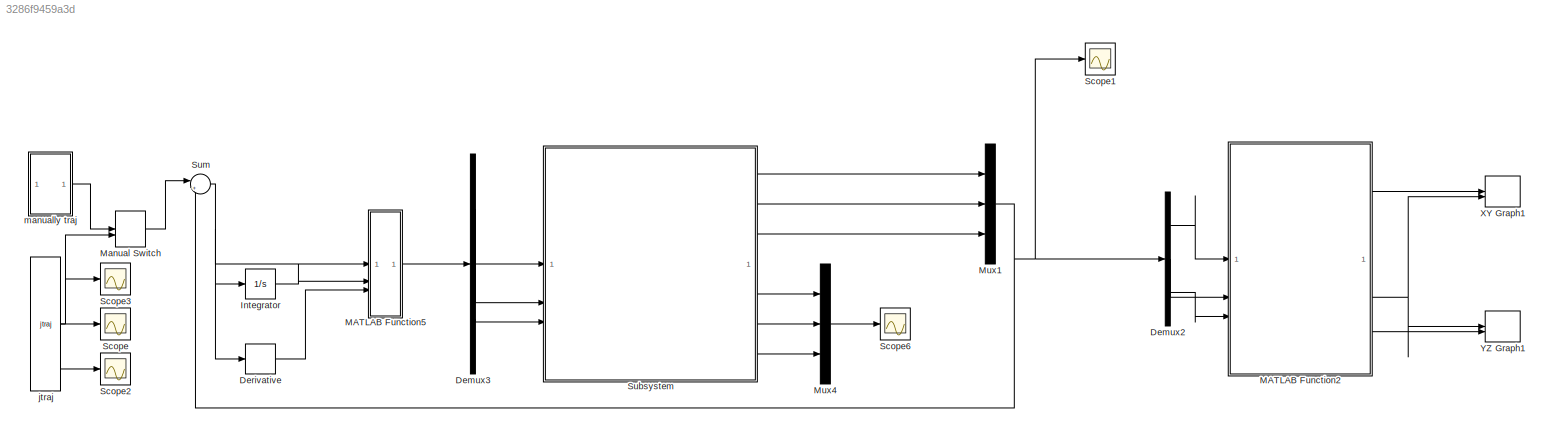
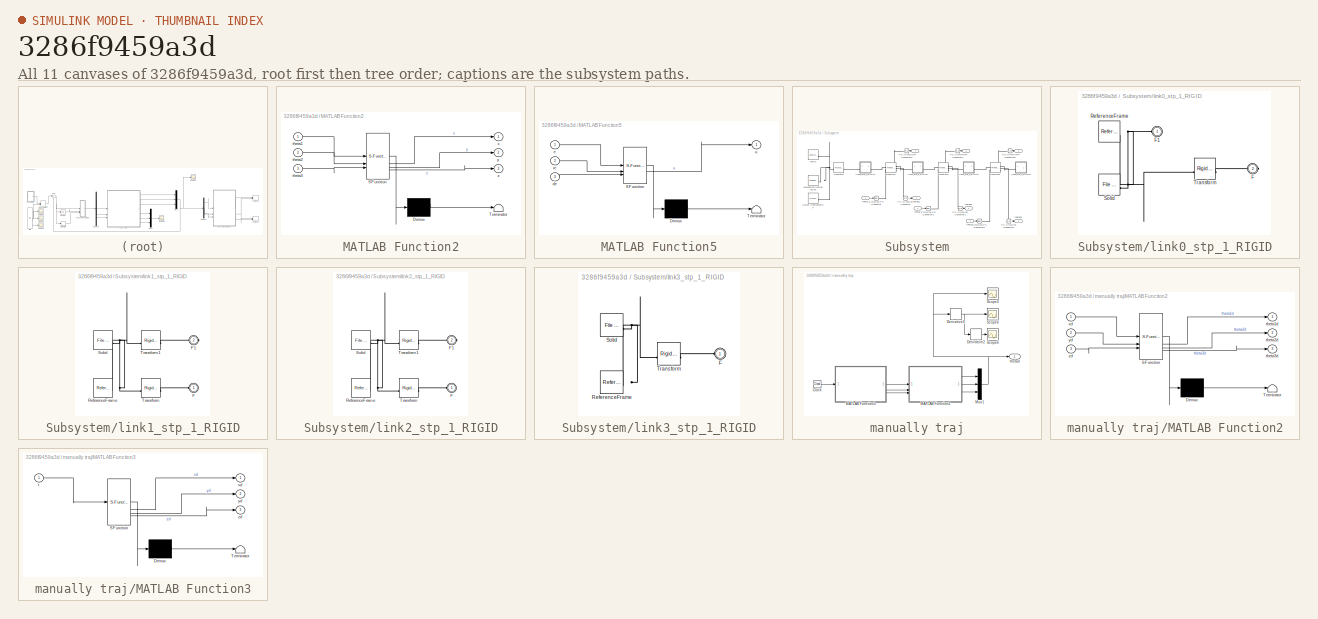
[diagram: thumbnail index - all 11 canvases of the model, root first then tree order]
MODEL slx_3286f9459a3d
KIND model
CONFIG AbsTol = auto
CONFIG EnableMultiTasking = off
CONFIG FixedStep = auto
CONFIG MaxStep = auto
CONFIG MinStep = auto
CONFIG RelTol = 1e-3
CONFIG SampleTimeConstraint = Unconstrained
CONFIG SolverName = VariableStepAuto
CONFIG StartTime = 0.0
CONFIG StopTime = 10.0
WORKSPACE source: external: MATLAB File  (data not in archive)
BLOCK [Demux] Demux2
  Outputs = 3
BLOCK [Demux] Demux3
  Outputs = 3
BLOCK [Derivative] Derivative
BLOCK [Integrator] Integrator
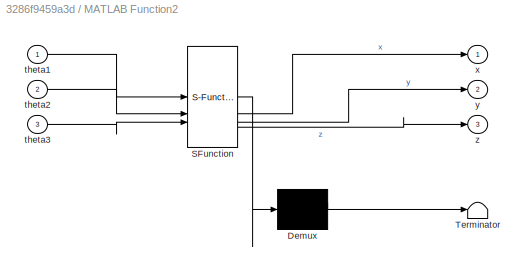
BLOCK [SubSystem] MATLAB Function2
  ErrorFcn = Stateflow.Translate.translate
  PermitHierarchicalResolution = ExplicitOnly
  SFBlockType = MATLAB Function
  TreatAsAtomicUnit = on
BLOCK [Demux] MATLAB Function2/ Demux 
  Outputs = 1
BLOCK [S-Function] MATLAB Function2/ SFunction 
  EnableBusSupport = on
  FunctionName = sf_sfun
  PortCounts = [3 4]
  SFcnIsStateOwnerBlock = off
  SFunctionDeploymentMode = off
  Tag = Stateflow S-Function 2
BLOCK [Terminator] MATLAB Function2/ Terminator 
BLOCK [Inport] MATLAB Function2/theta1
BLOCK [Inport] MATLAB Function2/theta2
  Port = 2
BLOCK [Inport] MATLAB Function2/theta3
  Port = 3
BLOCK [Outport] MATLAB Function2/x
BLOCK [Outport] MATLAB Function2/y
  Port = 2
BLOCK [Outport] MATLAB Function2/z
  Port = 3
BLOCK [SubSystem] MATLAB Function5
  ErrorFcn = Stateflow.Translate.translate
  PermitHierarchicalResolution = ExplicitOnly
  SFBlockType = MATLAB Function
  TreatAsAtomicUnit = on
BLOCK [Demux] MATLAB Function5/ Demux 
  Outputs = 1
BLOCK [S-Function] MATLAB Function5/ SFunction 
  EnableBusSupport = on
  FunctionName = sf_sfun
  PortCounts = [3 2]
  SFcnIsStateOwnerBlock = off
  SFunctionDeploymentMode = off
  Tag = Stateflow S-Function 5
BLOCK [Terminator] MATLAB Function5/ Terminator 
BLOCK [Inport] MATLAB Function5/de
  Port = 3
BLOCK [Inport] MATLAB Function5/e
BLOCK [Inport] MATLAB Function5/ie
  Port = 2
BLOCK [Outport] MATLAB Function5/u
BLOCK [ManualSwitch] Manual Switch
  CurrentSetting = 0
BLOCK [Mux] Mux1
  DisplayOption = bar
  Inputs = 3
BLOCK [Mux] Mux4
  DisplayOption = bar
  Inputs = 3
BLOCK [Scope] Scope
  Floating = off
  NumInputPorts = 1
  ScopeSpecificationString = Simulink.scopes.TimeScopeBlockCfg('CurrentConfiguration', extmgr.ConfigurationSet(extmgr.Configuration('Core','General UI',true),extmgr.Configuration('Core','Source UI',true),extmgr.Configuration('Sources','WiredSimulink',true,'DataLoggingVariableName','ScopeData1'),extmgr.Configuration('Visuals','Time Domain',true,'SerializedDisplays',{struct('MinYLimReal','-0.1256','MaxYLimReal','0.09629','YLabe...<+1421ch>
BLOCK [Scope] Scope1
  Floating = off
  NumInputPorts = 1
  ScopeSpecificationString = Simulink.scopes.TimeScopeBlockCfg('CurrentConfiguration', extmgr.ConfigurationSet(extmgr.Configuration('Core','General UI',true),extmgr.Configuration('Core','Source UI',true),extmgr.Configuration('Sources','WiredSimulink',true,'DataLoggingVariableName','ScopeData3'),extmgr.Configuration('Visuals','Time Domain',true,'SerializedDisplays',{struct('MinYLimReal','-1.87156','MaxYLimReal','2.00533','YLab...<+1457ch>
BLOCK [Scope] Scope2
  Floating = off
  NumInputPorts = 1
  ScopeSpecificationString = Simulink.scopes.TimeScopeBlockCfg('CurrentConfiguration', extmgr.ConfigurationSet(extmgr.Configuration('Core','General UI',true),extmgr.Configuration('Core','Source UI',true),extmgr.Configuration('Sources','WiredSimulink',true,'DataLoggingVariableName','ScopeData2'),extmgr.Configuration('Visuals','Time Domain',true,'SerializedDisplays',{struct('MinYLimReal','-0.18784','MaxYLimReal','0.14401','YLab...<+1425ch>
BLOCK [Scope] Scope3
  Floating = off
  NumInputPorts = 1
  ScopeSpecificationString = Simulink.scopes.TimeScopeBlockCfg('CurrentConfiguration', extmgr.ConfigurationSet(extmgr.Configuration('Core','General UI',true),extmgr.Configuration('Core','Source UI',true),extmgr.Configuration('Sources','WiredSimulink',true,'DataLoggingVariableName','ScopeData1'),extmgr.Configuration('Visuals','Time Domain',true,'SerializedDisplays',{struct('MinYLimReal','-1.98021','MaxYLimReal','2.11393','YLab...<+1426ch>
BLOCK [Scope] Scope6
  Floating = off
  NumInputPorts = 1
  ScopeSpecificationString = Simulink.scopes.TimeScopeBlockCfg('CurrentConfiguration', extmgr.ConfigurationSet(extmgr.Configuration('Core','General UI',true),extmgr.Configuration('Core','Source UI',true),extmgr.Configuration('Sources','WiredSimulink',true,'DataLoggingVariableName','ScopeData6'),extmgr.Configuration('Visuals','Time Domain',true,'SerializedDisplays',{struct('MinYLimReal','-29.19052','MaxYLimReal','33.42789','YL...<+1508ch>
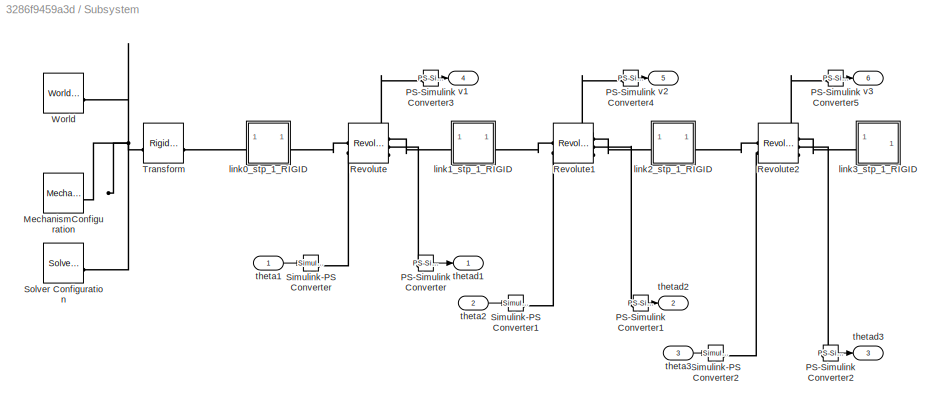
BLOCK [SubSystem] Subsystem
BLOCK [Reference] Subsystem/MechanismConfiguration  REF=sm_lib/Utilities/Mechanism
Configuration
  SourceBlock = sm_lib/Utilities/Mechanism\nConfiguration
  SourceType = Mechanism\nConfiguration
BLOCK [Reference] Subsystem/PS-Simulink Converter  REF=nesl_utility/PS-Simulink
Converter
  SourceBlock = nesl_utility/PS-Simulink\nConverter
  SourceType = PS-Simulink\nConverter
BLOCK [Reference] Subsystem/PS-Simulink Converter1  REF=nesl_utility/PS-Simulink
Converter
  SourceBlock = nesl_utility/PS-Simulink\nConverter
  SourceType = PS-Simulink\nConverter
BLOCK [Reference] Subsystem/PS-Simulink Converter2  REF=nesl_utility/PS-Simulink
Converter
  SourceBlock = nesl_utility/PS-Simulink\nConverter
  SourceType = PS-Simulink\nConverter
BLOCK [Reference] Subsystem/PS-Simulink Converter3  REF=nesl_utility/PS-Simulink
Converter
  SourceBlock = nesl_utility/PS-Simulink\nConverter
  SourceType = PS-Simulink\nConverter
BLOCK [Reference] Subsystem/PS-Simulink Converter4  REF=nesl_utility/PS-Simulink
Converter
  SourceBlock = nesl_utility/PS-Simulink\nConverter
  SourceType = PS-Simulink\nConverter
BLOCK [Reference] Subsystem/PS-Simulink Converter5  REF=nesl_utility/PS-Simulink
Converter
  SourceBlock = nesl_utility/PS-Simulink\nConverter
  SourceType = PS-Simulink\nConverter
BLOCK [Reference] Subsystem/Revolute  REF=sm_lib/Joints/Revolute Joint
  SourceBlock = sm_lib/Joints/Revolute Joint
  SourceType = Revolute Joint
BLOCK [Reference] Subsystem/Revolute1  REF=sm_lib/Joints/Revolute Joint
  SourceBlock = sm_lib/Joints/Revolute Joint
  SourceType = Revolute Joint
BLOCK [Reference] Subsystem/Revolute2  REF=sm_lib/Joints/Revolute Joint
  SourceBlock = sm_lib/Joints/Revolute Joint
  SourceType = Revolute Joint
BLOCK [Reference] Subsystem/Simulink-PS Converter  REF=nesl_utility/Simulink-PS
Converter
  SourceBlock = nesl_utility/Simulink-PS\nConverter
  SourceType = Simulink-PS\nConverter
BLOCK [Reference] Subsystem/Simulink-PS Converter1  REF=nesl_utility/Simulink-PS
Converter
  SourceBlock = nesl_utility/Simulink-PS\nConverter
  SourceType = Simulink-PS\nConverter
BLOCK [Reference] Subsystem/Simulink-PS Converter2  REF=nesl_utility/Simulink-PS
Converter
  SourceBlock = nesl_utility/Simulink-PS\nConverter
  SourceType = Simulink-PS\nConverter
BLOCK [Reference] Subsystem/Solver Configuration  REF=nesl_utility/Solver
Configuration
  SourceBlock = nesl_utility/Solver\nConfiguration
  SourceType = Solver\nConfiguration
BLOCK [Reference] Subsystem/Transform  REF=sm_lib/Frames and
Transforms/Rigid
Transform
  SourceBlock = sm_lib/Frames and\nTransforms/Rigid\nTransform
  SourceType = Rigid\nTransform
BLOCK [Reference] Subsystem/World  REF=sm_lib/Frames and
Transforms/World Frame
  SourceBlock = sm_lib/Frames and\nTransforms/World Frame
  SourceType = World Frame
BLOCK [SubSystem] Subsystem/link0_stp_1_RIGID
BLOCK [PMIOPort] Subsystem/link0_stp_1_RIGID/F
  Port = 2
  Side = Right
BLOCK [PMIOPort] Subsystem/link0_stp_1_RIGID/F1
  Side = Left
BLOCK [Reference] Subsystem/link0_stp_1_RIGID/ReferenceFrame  REF=sm_lib/Frames and
Transforms/Reference
Frame
  SourceBlock = sm_lib/Frames and\nTransforms/Reference\nFrame
  SourceType = Reference\nFrame
BLOCK [Reference] Subsystem/link0_stp_1_RIGID/Solid  REF=sm_lib/Body Elements/File Solid
  SourceBlock = sm_lib/Body Elements/File Solid
  SourceType = File Solid
BLOCK [Reference] Subsystem/link0_stp_1_RIGID/Transform  REF=sm_lib/Frames and
Transforms/Rigid
Transform
  SourceBlock = sm_lib/Frames and\nTransforms/Rigid\nTransform
  SourceType = Rigid\nTransform
BLOCK [SubSystem] Subsystem/link1_stp_1_RIGID
BLOCK [PMIOPort] Subsystem/link1_stp_1_RIGID/F
  Side = Left
BLOCK [PMIOPort] Subsystem/link1_stp_1_RIGID/F1
  Port = 2
  Side = Right
BLOCK [Reference] Subsystem/link1_stp_1_RIGID/ReferenceFrame  REF=sm_lib/Frames and
Transforms/Reference
Frame
  SourceBlock = sm_lib/Frames and\nTransforms/Reference\nFrame
  SourceType = Reference\nFrame
BLOCK [Reference] Subsystem/link1_stp_1_RIGID/Solid  REF=sm_lib/Body Elements/File Solid
  SourceBlock = sm_lib/Body Elements/File Solid
  SourceType = File Solid
BLOCK [Reference] Subsystem/link1_stp_1_RIGID/Transform  REF=sm_lib/Frames and
Transforms/Rigid
Transform
  SourceBlock = sm_lib/Frames and\nTransforms/Rigid\nTransform
  SourceType = Rigid\nTransform
BLOCK [Reference] Subsystem/link1_stp_1_RIGID/Transform1  REF=sm_lib/Frames and
Transforms/Rigid
Transform
  SourceBlock = sm_lib/Frames and\nTransforms/Rigid\nTransform
  SourceType = Rigid\nTransform
BLOCK [SubSystem] Subsystem/link2_stp_1_RIGID
BLOCK [PMIOPort] Subsystem/link2_stp_1_RIGID/F
  Side = Left
BLOCK [PMIOPort] Subsystem/link2_stp_1_RIGID/F1
  Port = 2
  Side = Right
BLOCK [Reference] Subsystem/link2_stp_1_RIGID/ReferenceFrame  REF=sm_lib/Frames and
Transforms/Reference
Frame
  SourceBlock = sm_lib/Frames and\nTransforms/Reference\nFrame
  SourceType = Reference\nFrame
BLOCK [Reference] Subsystem/link2_stp_1_RIGID/Solid  REF=sm_lib/Body Elements/File Solid
  SourceBlock = sm_lib/Body Elements/File Solid
  SourceType = File Solid
BLOCK [Reference] Subsystem/link2_stp_1_RIGID/Transform  REF=sm_lib/Frames and
Transforms/Rigid
Transform
  SourceBlock = sm_lib/Frames and\nTransforms/Rigid\nTransform
  SourceType = Rigid\nTransform
BLOCK [Reference] Subsystem/link2_stp_1_RIGID/Transform1  REF=sm_lib/Frames and
Transforms/Rigid
Transform
  SourceBlock = sm_lib/Frames and\nTransforms/Rigid\nTransform
  SourceType = Rigid\nTransform
BLOCK [SubSystem] Subsystem/link3_stp_1_RIGID
BLOCK [PMIOPort] Subsystem/link3_stp_1_RIGID/F
  Side = Left
BLOCK [Reference] Subsystem/link3_stp_1_RIGID/ReferenceFrame  REF=sm_lib/Frames and
Transforms/Reference
Frame
  SourceBlock = sm_lib/Frames and\nTransforms/Reference\nFrame
  SourceType = Reference\nFrame
BLOCK [Reference] Subsystem/link3_stp_1_RIGID/Solid  REF=sm_lib/Body Elements/File Solid
  SourceBlock = sm_lib/Body Elements/File Solid
  SourceType = File Solid
BLOCK [Reference] Subsystem/link3_stp_1_RIGID/Transform  REF=sm_lib/Frames and
Transforms/Rigid
Transform
  SourceBlock = sm_lib/Frames and\nTransforms/Rigid\nTransform
  SourceType = Rigid\nTransform
BLOCK [Inport] Subsystem/theta1
BLOCK [Inport] Subsystem/theta2
  Port = 2
BLOCK [Inport] Subsystem/theta3
  Port = 3
BLOCK [Outport] Subsystem/thetad1
BLOCK [Outport] Subsystem/thetad2
  Port = 2
BLOCK [Outport] Subsystem/thetad3
  Port = 3
BLOCK [Outport] Subsystem/v1
  Port = 4
BLOCK [Outport] Subsystem/v2
  Port = 5
BLOCK [Outport] Subsystem/v3
  Port = 6
BLOCK [Sum] Sum
  Inputs = |+-
BLOCK [Record] XY Graph1
  CompatibilityTag = XY
  FileSettingsInternal = {"entries":[{"content":{"excelSettings":{"content":{},"type":"Streamout.ExcelSettings"}},"type":"Streamout.FileSettingStorage","uuid":""}],"packageUris":["http:\/\/schema.mathworks.com\/mf0\/streamout_blocks\/R2020a"],"version":"1.0"}
  Layout = [1 1]
  SignalsInternal = {"entries":[{"content":{"signals":[{"content":{"blockPath":[],"dimensions":[1],"domain":"","lineColor":"#fe330a","plots":[1],"port":1,"sid":[""],"signalID":1925,"signalName":"MATLAB Function2:1"},"type":"RecordBlkView.Signal","uuid":""},{"content":{"blockPath":[],"dimensions":[1],"domain":"","lineColor":"#22b573","plots":[1],"port":2,"sid":[""],"signalID":1929,"signalName":"MATLAB Function2:2"},"t...<+184ch>
  VisualizationBindings = {"xyplotplugin":{"info":[{"series":[{"bindingParametersList":[{"parameter":"X-Axis","signalID":1925,"signalName":"MATLAB Function2:1"},{"parameter":"Y-Axis","signalID":1929,"signalName":"MATLAB Function2:2"}],"seriesID":3745}],"subplotID":1}]}}
BLOCK [Record] YZ Graph1
  CompatibilityTag = XY
  FileSettingsInternal = {"entries":[{"content":{"excelSettings":{"content":{},"type":"Streamout.ExcelSettings"}},"type":"Streamout.FileSettingStorage","uuid":""}],"packageUris":["http:\/\/schema.mathworks.com\/mf0\/streamout_blocks\/R2020a"],"version":"1.0"}
  Layout = [1 1]
  SignalsInternal = {"entries":[{"content":{"signals":[{"content":{"blockPath":[],"dimensions":[1],"domain":"","lineColor":"#0072bd","plots":[1],"port":1,"sid":[""],"signalID":1933,"signalName":"MATLAB Function2:2"},"type":"RecordBlkView.Signal","uuid":""},{"content":{"blockPath":[],"dimensions":[1],"domain":"","lineColor":"#d95319","plots":[1],"port":2,"sid":[""],"signalID":1937,"signalName":"MATLAB Function2:3"},"t...<+184ch>
  VisualizationBindings = {"xyplotplugin":{"info":[{"series":[{"bindingParametersList":[{"parameter":"X-Axis","signalID":1933,"signalName":"MATLAB Function2:2"},{"parameter":"Y-Axis","signalID":1937,"signalName":"MATLAB Function2:3"}],"seriesID":65504}],"subplotID":1}]}}
BLOCK [Reference] jtraj  REF=roblocks/Toolbox/jtraj  (lib defined in mdl_2a292b13c81b, mdl_69400f8cfe22, +12 more)
  SourceBlock = roblocks/Toolbox/jtraj
BLOCK [SubSystem] manually traj
BLOCK [Clock] manually traj/Clock
BLOCK [Derivative] manually traj/Derivative1
BLOCK [Derivative] manually traj/Derivative2
BLOCK [SubSystem] manually traj/MATLAB Function2
  ErrorFcn = Stateflow.Translate.translate
  PermitHierarchicalResolution = ExplicitOnly
  SFBlockType = MATLAB Function
  TreatAsAtomicUnit = on
BLOCK [Demux] manually traj/MATLAB Function2/ Demux 
  Outputs = 1
BLOCK [S-Function] manually traj/MATLAB Function2/ SFunction 
  EnableBusSupport = on
  FunctionName = sf_sfun
  PortCounts = [3 4]
  SFcnIsStateOwnerBlock = off
  SFunctionDeploymentMode = off
  Tag = Stateflow S-Function 3
BLOCK [Terminator] manually traj/MATLAB Function2/ Terminator 
BLOCK [Outport] manually traj/MATLAB Function2/theta1d
BLOCK [Outport] manually traj/MATLAB Function2/theta2d
  Port = 2
BLOCK [Outport] manually traj/MATLAB Function2/theta3d
  Port = 3
BLOCK [Inport] manually traj/MATLAB Function2/xd
BLOCK [Inport] manually traj/MATLAB Function2/yd
  Port = 2
BLOCK [Inport] manually traj/MATLAB Function2/zd
  Port = 3
BLOCK [SubSystem] manually traj/MATLAB Function3
  ErrorFcn = Stateflow.Translate.translate
  PermitHierarchicalResolution = ExplicitOnly
  SFBlockType = MATLAB Function
  TreatAsAtomicUnit = on
BLOCK [Demux] manually traj/MATLAB Function3/ Demux 
  Outputs = 1
BLOCK [S-Function] manually traj/MATLAB Function3/ SFunction 
  EnableBusSupport = on
  FunctionName = sf_sfun
  PortCounts = [1 4]
  SFcnIsStateOwnerBlock = off
  SFunctionDeploymentMode = off
  Tag = Stateflow S-Function 4
BLOCK [Terminator] manually traj/MATLAB Function3/ Terminator 
BLOCK [Inport] manually traj/MATLAB Function3/t
BLOCK [Outport] manually traj/MATLAB Function3/xd
BLOCK [Outport] manually traj/MATLAB Function3/yd
  Port = 2
BLOCK [Outport] manually traj/MATLAB Function3/zd
  Port = 3
BLOCK [Mux] manually traj/Mux1
  DisplayOption = bar
  Inputs = 3
BLOCK [Scope] manually traj/Scope3
  Floating = off
  NumInputPorts = 1
  ScopeSpecificationString = Simulink.scopes.TimeScopeBlockCfg('CurrentConfiguration', extmgr.ConfigurationSet(extmgr.Configuration('Core','General UI',true),extmgr.Configuration('Core','Source UI',true),extmgr.Configuration('Sources','WiredSimulink',true,'DataLoggingVariableName','ScopeData1'),extmgr.Configuration('Visuals','Time Domain',true,'SerializedDisplays',{struct('MinYLimReal','0.54522','MaxYLimReal','2.80203','YLabe...<+1489ch>
BLOCK [Scope] manually traj/Scope4
  Floating = off
  NumInputPorts = 1
  ScopeSpecificationString = Simulink.scopes.TimeScopeBlockCfg('CurrentConfiguration', extmgr.ConfigurationSet(extmgr.Configuration('Core','General UI',true),extmgr.Configuration('Core','Source UI',true),extmgr.Configuration('Sources','WiredSimulink',true,'DataLoggingVariableName','ScopeData3'),extmgr.Configuration('Visuals','Time Domain',true,'SerializedDisplays',{struct('MinYLimReal','-0.24414','MaxYLimReal','0.34509','YLab...<+1462ch>
BLOCK [Scope] manually traj/Scope6
  Floating = off
  NumInputPorts = 1
  ScopeSpecificationString = Simulink.scopes.TimeScopeBlockCfg('CurrentConfiguration', extmgr.ConfigurationSet(extmgr.Configuration('Core','General UI',true),extmgr.Configuration('Core','Source UI',true),extmgr.Configuration('Sources','WiredSimulink',true,'DataLoggingVariableName','ScopeData5'),extmgr.Configuration('Visuals','Time Domain',true,'SerializedDisplays',{struct('MinYLimReal','-52282080454.00742','MaxYLimReal','7391...<+1560ch>
BLOCK [Outport] manually traj/thetad
LINE Demux2:1 -> MATLAB Function2:1
LINE Demux2:2 -> MATLAB Function2:2
LINE Demux2:3 -> MATLAB Function2:3
LINE Demux3:1 -> Subsystem:1
LINE Demux3:2 -> Subsystem:2
LINE Demux3:3 -> Subsystem:3
LINE Derivative:1 -> MATLAB Function5:3
LINE Integrator:1 -> MATLAB Function5:2
LINE MATLAB Function2:1 -> XY Graph1:1
NET MATLAB Function2:2 -> XY Graph1:2, YZ Graph1:1
LINE MATLAB Function2:3 -> YZ Graph1:2
LINE MATLAB Function5:1 -> Demux3:1
LINE Manual Switch:1 -> Sum:1
NET Mux1:1 -> Demux2:1, Scope1:1, Sum:2
LINE Mux4:1 -> Scope6:1
LINE Subsystem/PS-Simulink Converter1:1 -> Subsystem/thetad2:1
LINE Subsystem/PS-Simulink Converter2:1 -> Subsystem/thetad3:1
LINE Subsystem/PS-Simulink Converter3:1 -> Subsystem/v1:1
LINE Subsystem/PS-Simulink Converter4:1 -> Subsystem/v2:1
LINE Subsystem/PS-Simulink Converter5:1 -> Subsystem/v3:1
LINE Subsystem/PS-Simulink Converter:1 -> Subsystem/thetad1:1
LINE Subsystem/theta1:1 -> Subsystem/Simulink-PS Converter:1
LINE Subsystem/theta2:1 -> Subsystem/Simulink-PS Converter1:1
LINE Subsystem/theta3:1 -> Subsystem/Simulink-PS Converter2:1
LINE Subsystem:1 -> Mux1:1
LINE Subsystem:2 -> Mux1:2
LINE Subsystem:3 -> Mux1:3
LINE Subsystem:4 -> Mux4:1
LINE Subsystem:5 -> Mux4:2
LINE Subsystem:6 -> Mux4:3
NET Sum:1 -> Derivative:1, Integrator:1, MATLAB Function5:1
NET jtraj:1 -> Manual Switch:2, Scope3:1
LINE jtraj:2 -> Scope:1
LINE jtraj:3 -> Scope2:1
LINE manually traj/Clock:1 -> manually traj/MATLAB Function3:1
NET manually traj/Derivative1:1 -> manually traj/Derivative2:1, manually traj/Scope4:1
LINE manually traj/Derivative2:1 -> manually traj/Scope6:1
LINE manually traj/MATLAB Function2:1 -> manually traj/Mux1:1
LINE manually traj/MATLAB Function2:2 -> manually traj/Mux1:2
LINE manually traj/MATLAB Function2:3 -> manually traj/Mux1:3
LINE manually traj/MATLAB Function3:1 -> manually traj/MATLAB Function2:1
LINE manually traj/MATLAB Function3:2 -> manually traj/MATLAB Function2:2
LINE manually traj/MATLAB Function3:3 -> manually traj/MATLAB Function2:3
NET manually traj/Mux1:1 -> manually traj/Derivative1:1, manually traj/Scope3:1, manually traj/thetad:1
LINE manually traj:1 -> Manual Switch:1
PNET net1: Subsystem/MechanismConfiguration:RConn1 -- Subsystem/Solver Configuration:RConn1 -- Subsystem/Transform:LConn1 -- Subsystem/World:RConn1
PLINE Subsystem/PS-Simulink Converter1:LConn1 -- Subsystem/Revolute1:RConn2
PLINE Subsystem/PS-Simulink Converter2:LConn1 -- Subsystem/Revolute2:RConn2
PLINE Subsystem/PS-Simulink Converter3:LConn1 -- Subsystem/Revolute:RConn3
PLINE Subsystem/PS-Simulink Converter4:LConn1 -- Subsystem/Revolute1:RConn3
PLINE Subsystem/PS-Simulink Converter5:LConn1 -- Subsystem/Revolute2:RConn3
PLINE Subsystem/PS-Simulink Converter:LConn1 -- Subsystem/Revolute:RConn2
PLINE Subsystem/Revolute1:LConn1 -- Subsystem/link1_stp_1_RIGID:RConn1
PLINE Subsystem/Revolute1:LConn2 -- Subsystem/Simulink-PS Converter1:RConn1
PLINE Subsystem/Revolute1:RConn1 -- Subsystem/link2_stp_1_RIGID:LConn1
PLINE Subsystem/Revolute2:LConn1 -- Subsystem/link2_stp_1_RIGID:RConn1
PLINE Subsystem/Revolute2:LConn2 -- Subsystem/Simulink-PS Converter2:RConn1
PLINE Subsystem/Revolute2:RConn1 -- Subsystem/link3_stp_1_RIGID:LConn1
PLINE Subsystem/Revolute:LConn1 -- Subsystem/link0_stp_1_RIGID:RConn1
PLINE Subsystem/Revolute:LConn2 -- Subsystem/Simulink-PS Converter:RConn1
PLINE Subsystem/Revolute:RConn1 -- Subsystem/link1_stp_1_RIGID:LConn1
PLINE Subsystem/Transform:RConn1 -- Subsystem/link0_stp_1_RIGID:LConn1
PNET net2: Subsystem/link0_stp_1_RIGID/F1:RConn1 -- Subsystem/link0_stp_1_RIGID/ReferenceFrame:RConn1 -- Subsystem/link0_stp_1_RIGID/Solid:RConn1 -- Subsystem/link0_stp_1_RIGID/Transform:LConn1
PLINE Subsystem/link0_stp_1_RIGID/F:RConn1 -- Subsystem/link0_stp_1_RIGID/Transform:RConn1
PLINE Subsystem/link1_stp_1_RIGID/F1:RConn1 -- Subsystem/link1_stp_1_RIGID/Transform1:RConn1
PLINE Subsystem/link1_stp_1_RIGID/F:RConn1 -- Subsystem/link1_stp_1_RIGID/Transform:RConn1
PNET net3: Subsystem/link1_stp_1_RIGID/ReferenceFrame:RConn1 -- Subsystem/link1_stp_1_RIGID/Solid:RConn1 -- Subsystem/link1_stp_1_RIGID/Transform1:LConn1 -- Subsystem/link1_stp_1_RIGID/Transform:LConn1
PLINE Subsystem/link2_stp_1_RIGID/F1:RConn1 -- Subsystem/link2_stp_1_RIGID/Transform1:RConn1
PLINE Subsystem/link2_stp_1_RIGID/F:RConn1 -- Subsystem/link2_stp_1_RIGID/Transform:RConn1
PNET net4: Subsystem/link2_stp_1_RIGID/ReferenceFrame:RConn1 -- Subsystem/link2_stp_1_RIGID/Solid:RConn1 -- Subsystem/link2_stp_1_RIGID/Transform1:LConn1 -- Subsystem/link2_stp_1_RIGID/Transform:LConn1
PLINE Subsystem/link3_stp_1_RIGID/F:RConn1 -- Subsystem/link3_stp_1_RIGID/Transform:RConn1
PNET net5: Subsystem/link3_stp_1_RIGID/ReferenceFrame:RConn1 -- Subsystem/link3_stp_1_RIGID/Solid:RConn1 -- Subsystem/link3_stp_1_RIGID/Transform:LConn1
note: NET lines group one-source signal fan-out (src -> all destinations, sorted); 1:1 wires keep LINE; PNET lines group multi-terminal physical nets as a canonical sorted terminal list (undirected conserving connections); 2-terminal nets keep the pairwise PLINE form
CHART MATLAB Function2 states=1 transitions=1
  STATE_LABEL 'eML_blk_kernel()'
  STATE_LABEL 'SCRIPT:\nfunction [x, y, z] = forward_kinematics(theta1, theta2, theta3)\n    % 运动学参数\n    l1 = 73.5/1000; % 连杆 1 长度 (m)\n    l2 = 250/1000; % 连杆 2 长度 (m)\n    l3 = 350/1000; % 连杆 3 长度 (m)\n    \n    % 关节偏移角（转换为弧度）\n    offset1 = 97.661581997810416 * pi/180;\n    offset2 = -89.473812640630314 * pi/180;\n    offset3 = 91.345607359572639 * pi/180;\n    \n    % 计算修正后的关节角度\n    theta1_corrected = theta1 + offset1;...<+478ch>'
CHART manually traj/MATLAB Function2 states=1 transitions=1
  STATE_LABEL 'eML_blk_kernel()'
  STATE_LABEL 'SCRIPT:\nfunction [theta1d, theta2d, theta3d] = inverse_kinematics(xd, yd, zd)\n    % 定义初始角度\n    theta1_init = 17.604357293986745 * pi/180;\n    theta2_init = 152.88653592514848 * pi/180;\n    theta3_init = -6.7495353846148296 * pi/180;\n    \n    l1 = 73.5; % 从表中获取l1的值,mm\n    l2 = 250;   % 从表中获取l2的值 \n    l3 = 350;   % 从表中获取l3的值\n    \n    % 计算theta1d\n    theta1d = atan2(yd, xd);\n    %theta1d = atan2(zd, ...<+1247ch>'
CHART manually traj/MATLAB Function3 states=1 transitions=1
  STATE_LABEL 'eML_blk_kernel()'
  STATE_LABEL "SCRIPT:\nfunction [xd, yd, zd] = Desired_Trajectory(t)\n\n% % 定义坐标\n% waypoints = [-100, 200, 250;\n% 150, -150, 300;\n% -200, 100, 250;\n% 100, -250, 350;\n% 0, 50, 400];\n% \n% % 定义各段时间\n% t_seg = [0, 2, 4, 6, 8, 10];\n% \n% % 计算当前所在的轨迹\n% current_seg = find(t >= t_seg, 1, 'last');\n% \n% % 计算当前轨迹的时间\n% t_current = t - t_seg(current_seg);\n% \n% % 计算当前轨迹的起点和终点\n% start_point = waypoints(current_seg, :);\n% end_point...<+867ch>"
CHART MATLAB Function5 states=1 transitions=1
  STATE_LABEL 'eML_blk_kernel()'
  STATE_LABEL 'SCRIPT:\nfunction u = pidController(e,ie,de)\n    % 控制器参数\n    Kp = 10 * eye(3);\n    Kd = 1 * eye(3);\n    Ki = 4 * eye(3); % 积分增益矩阵\n\n    % 计算控制律\n    u = Kp * e + Ki * ie + Kd * de;\nend'
CHART  states=0 transitions=0
CHART  states=0 transitions=0
CHART  states=0 transitions=0
CHART  states=0 transitions=0
